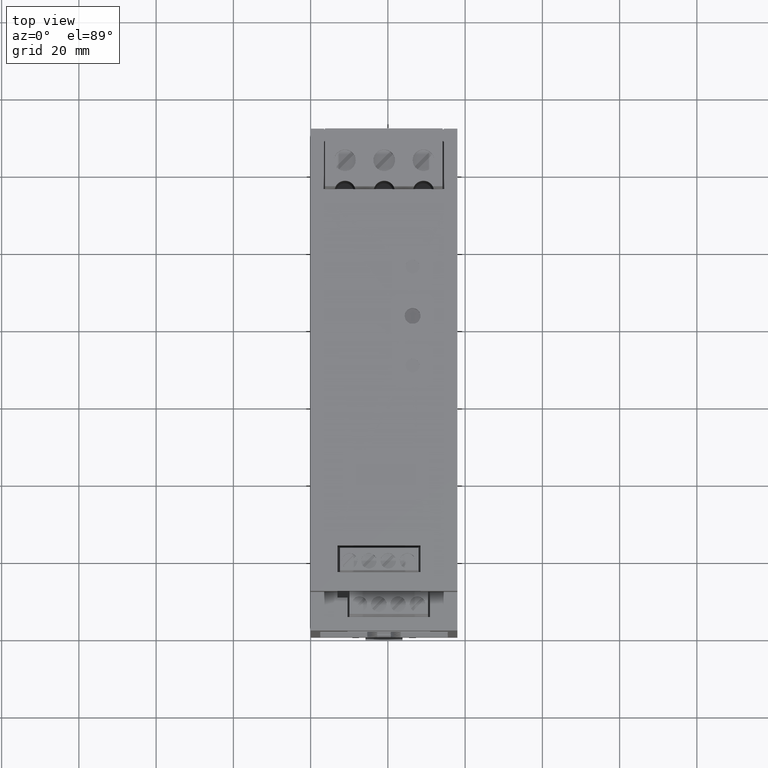
[diagram: clean part render]
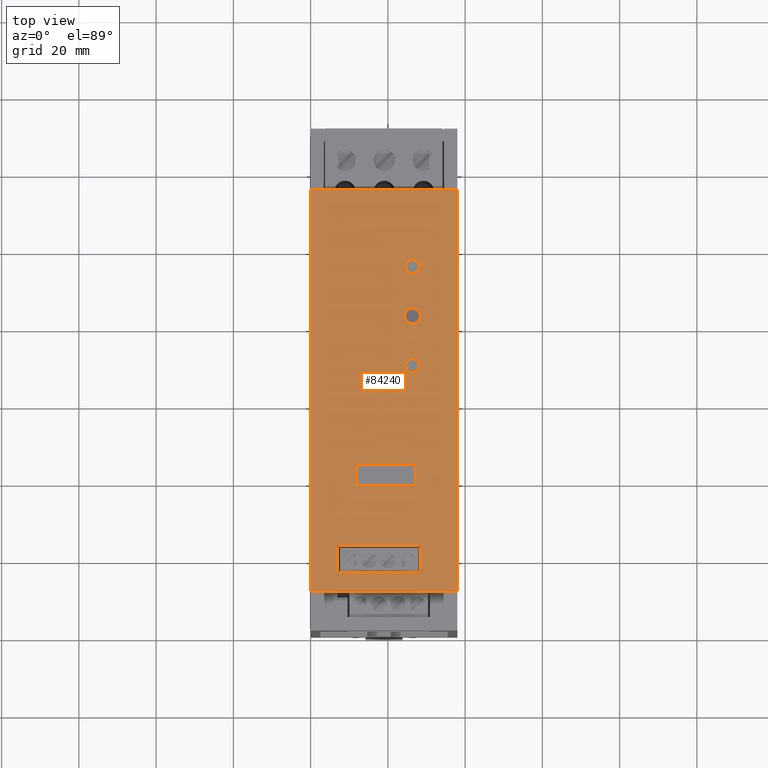
[diagram: same view with one face highlighted and labeled with its STEP entity id]
A machine part, top view. The second image highlights one B-rep face of the part: STEP entity #84240.
In plain terms, the highlighted planar face has unit normal (-0, 0, 1).
Its self-contained STEP definition (entity closure, byte-faithful):
#82720=CARTESIAN_POINT('',(33.9999632882468,122.000000000009,
119.104326773573));
#82730=DIRECTION('',(4.76938635649023E-23,1.,3.46944695162579E-18));
#82740=DIRECTION('',(-1.37468202355512E-5,3.46944695195361E-18,
-0.999999999905512));
#82750=AXIS2_PLACEMENT_3D('',#82720,#82730,#82740);
#82760=PLANE('',#82750);
#82770=CARTESIAN_POINT('',(0.,122.000000000009,86.4547941618713));
#82780=DIRECTION('',(-0.999999999905512,0.,1.37468202355512E-5));
#82790=VECTOR('',#82780,1.);
#82800=LINE('',#82770,#82790);
#82810=CARTESIAN_POINT('',(26.0995144553126,122.000000000009,
86.4544353765379));
#82820=VERTEX_POINT('',#82810);
#82830=CARTESIAN_POINT('',(10.8995144567488,122.000000000009,
86.4546443282054));
#82840=VERTEX_POINT('',#82830);
#82850=EDGE_CURVE('',#82820,#82840,#82800,.T.);
#82860=ORIENTED_EDGE('',*,*,#82850,.F.);
#82870=CARTESIAN_POINT('',(10.8983259802946,122.000000000009,0.));
#82880=DIRECTION('',(1.37468202355246E-5,-3.46944695195361E-18,
0.999999999905512));
#82890=VECTOR('',#82880,1.);
#82900=LINE('',#82870,#82890);
#82910=CARTESIAN_POINT('',(10.899587314896,122.000000000009,
91.7546443277047));
#82920=VERTEX_POINT('',#82910);
#82930=EDGE_CURVE('',#82840,#82920,#82900,.T.);
#82940=ORIENTED_EDGE('',*,*,#82930,.F.);
#82950=CARTESIAN_POINT('',(0.,122.000000000009,91.7547941623721));
#82960=DIRECTION('',(0.999999999905512,0.,-1.37468202355512E-5));
#82970=VECTOR('',#82960,1.);
#82980=LINE('',#82950,#82970);
#82990=CARTESIAN_POINT('',(26.0995873134598,122.000000000009,
91.7544353760372));
#83000=VERTEX_POINT('',#82990);
#83010=EDGE_CURVE('',#82920,#83000,#82980,.T.);
#83020=ORIENTED_EDGE('',*,*,#83010,.F.);
#83030=CARTESIAN_POINT('',(26.0983259817308,122.000000000009,0.));
#83040=DIRECTION('',(-1.37468202355246E-5,3.46944695195361E-18,
-0.999999999905512));
#83050=VECTOR('',#83040,1.);
#83060=LINE('',#83030,#83050);
#83070=EDGE_CURVE('',#83000,#82820,#83060,.T.);
#83080=ORIENTED_EDGE('',*,*,#83070,.F.);
#83090=EDGE_LOOP('',(#83080,#83020,#82940,#82860));
#83100=FACE_BOUND('',#83090,.T.);
#83110=CARTESIAN_POINT('',(25.3880231618617,122.000000000009,
47.9363312967292));
#83120=DIRECTION('',(-2.50184635150066E-20,-1.,5.20417042740591E-17));
#83130=DIRECTION('',(0.999999999905512,-2.57338714660528E-20,
-1.37468202356078E-5));
#83140=AXIS2_PLACEMENT_3D('',#83110,#83120,#83130);
#83150=CIRCLE('',#83140,2.05);
#83160=CARTESIAN_POINT('',(27.438023161668,122.000000000009,
47.9363031157477));
#83170=VERTEX_POINT('',#83160);
#83180=CARTESIAN_POINT('',(23.3380231620554,122.000000000009,
47.9363594777107));
#83190=VERTEX_POINT('',#83180);
#83200=EDGE_CURVE('',#83170,#83190,#83150,.T.);
#83210=ORIENTED_EDGE('',*,*,#83200,.T.);
#83220=EDGE_CURVE('',#83190,#83170,#83150,.T.);
#83230=ORIENTED_EDGE('',*,*,#83220,.T.);
#83240=EDGE_LOOP('',(#83230,#83210));
#83250=FACE_BOUND('',#83240,.T.);
#83260=CARTESIAN_POINT('',(25.3878470650944,122.000000000009,
35.1263312979396));
#83270=DIRECTION('',(-2.50184635150066E-20,-1.,5.20417042740591E-17));
#83280=DIRECTION('',(0.999999999905512,-2.57338714660528E-20,
-1.37468202356078E-5));
#83290=AXIS2_PLACEMENT_3D('',#83260,#83270,#83280);
#83300=CIRCLE('',#83290,1.8);
#83310=CARTESIAN_POINT('',(23.5878470652645,122.000000000009,
35.126356042216));
#83320=VERTEX_POINT('',#83310);
#83330=CARTESIAN_POINT('',(27.1878470649244,122.000000000009,
35.1263065536632));
#83340=VERTEX_POINT('',#83330);
#83350=EDGE_CURVE('',#83320,#83340,#83300,.T.);
#83360=ORIENTED_EDGE('',*,*,#83350,.T.);
#83370=EDGE_CURVE('',#83340,#83320,#83300,.T.);
#83380=ORIENTED_EDGE('',*,*,#83370,.T.);
#83390=EDGE_LOOP('',(#83380,#83360));
#83400=FACE_BOUND('',#83390,.T.);
#83410=CARTESIAN_POINT('',(25.3881992586289,122.000000000009,
60.7463312955188));
#83420=DIRECTION('',(-2.50184635150066E-20,-1.,5.20417042740591E-17));
#83430=DIRECTION('',(0.999999999905512,-2.57338714660528E-20,
-1.37468202356078E-5));
#83440=AXIS2_PLACEMENT_3D('',#83410,#83420,#83430);
#83450=CIRCLE('',#83440,1.8);
#83460=CARTESIAN_POINT('',(23.588199258799,122.000000000009,
60.7463560397952));
#83470=VERTEX_POINT('',#83460);
#83480=CARTESIAN_POINT('',(27.1881992584588,122.000000000009,
60.7463065512424));
#83490=VERTEX_POINT('',#83480);
#83500=EDGE_CURVE('',#83470,#83490,#83450,.T.);
#83510=ORIENTED_EDGE('',*,*,#83500,.T.);
#83520=EDGE_CURVE('',#83490,#83470,#83450,.T.);
#83530=ORIENTED_EDGE('',*,*,#83520,.T.);
#83540=EDGE_LOOP('',(#83530,#83510));
#83550=FACE_BOUND('',#83540,.T.);
#83560=CARTESIAN_POINT('',(0.,122.000000000009,107.304794163841));
#83570=DIRECTION('',(-0.999999999905512,0.,1.37468202355512E-5));
#83580=VECTOR('',#83570,1.);
#83590=LINE('',#83560,#83580);
#83600=CARTESIAN_POINT('',(27.3998010763917,122.000000000009,
107.304417503702));
#83610=VERTEX_POINT('',#83600);
#83620=CARTESIAN_POINT('',(5.9998010784137,122.000000000009,
107.304711685655));
#83630=VERTEX_POINT('',#83620);
#83640=EDGE_CURVE('',#83610,#83630,#83590,.T.);
#83650=ORIENTED_EDGE('',*,*,#83640,.F.);
#83660=CARTESIAN_POINT('',(5.99832597983159,122.000000000009,0.));
#83670=DIRECTION('',(-1.37468202355512E-5,3.46944695195361E-18,
-0.999999999905512));
#83680=VECTOR('',#83670,1.);
#83690=LINE('',#83660,#83680);
#83700=CARTESIAN_POINT('',(5.99989730615535,122.000000000009,
114.304711684993));
#83710=VERTEX_POINT('',#83700);
#83720=EDGE_CURVE('',#83710,#83630,#83690,.T.);
#83730=ORIENTED_EDGE('',*,*,#83720,.T.);
#83740=CARTESIAN_POINT('',(0.,122.000000000009,114.304794164503));
#83750=DIRECTION('',(0.999999999905512,0.,-1.37468202355512E-5));
#83760=VECTOR('',#83750,1.);
#83770=LINE('',#83740,#83760);
#83780=CARTESIAN_POINT('',(27.3998973041333,122.000000000009,
114.30441750304));
#83790=VERTEX_POINT('',#83780);
#83800=EDGE_CURVE('',#83710,#83790,#83770,.T.);
#83810=ORIENTED_EDGE('',*,*,#83800,.F.);
#83820=CARTESIAN_POINT('',(27.3983259818536,122.000000000009,0.));
#83830=DIRECTION('',(1.37468202355512E-5,-3.46944695195361E-18,
0.999999999905512));
#83840=VECTOR('',#83830,1.);
#83850=LINE('',#83820,#83840);
#83860=EDGE_CURVE('',#83610,#83790,#83850,.T.);
#83870=ORIENTED_EDGE('',*,*,#83860,.T.);
#83880=EDGE_LOOP('',(#83870,#83810,#83730,#83650));
#83890=FACE_BOUND('',#83880,.T.);
#83900=CARTESIAN_POINT('',(36.9983259827607,122.000000000009,0.));
#83910=DIRECTION('',(1.37468202355512E-5,-3.46944695195361E-18,
0.999999999905512));
#83920=VECTOR('',#83910,1.);
#83930=LINE('',#83900,#83920);
#83940=CARTESIAN_POINT('',(36.9985336186589,122.000000000009,
15.104285542939));
#83950=VERTEX_POINT('',#83940);
#83960=CARTESIAN_POINT('',(36.9999632879634,122.000000000009,
119.104285533112));
#83970=VERTEX_POINT('',#83960);
#83980=EDGE_CURVE('',#83950,#83970,#83930,.T.);
#83990=ORIENTED_EDGE('',*,*,#83980,.F.);
#84000=CARTESIAN_POINT('',(0.,122.000000000009,119.104794164956));
#84010=DIRECTION('',(0.999999999905512,0.,-1.37468202355512E-5));
#84020=VECTOR('',#84010,1.);
#84030=LINE('',#84000,#84020);
#84040=CARTESIAN_POINT('',(-1.0000367084461,122.000000000009,
119.104807912281));
#84050=VERTEX_POINT('',#84040);
#84060=EDGE_CURVE('',#84050,#83970,#84030,.T.);
#84070=ORIENTED_EDGE('',*,*,#84060,.T.);
#84080=CARTESIAN_POINT('',(-1.00167402082982,122.000000000009,0.));
#84090=DIRECTION('',(-1.37468202355512E-5,3.46944695195361E-18,
-0.999999999905512));
#84100=VECTOR('',#84090,1.);
#84110=LINE('',#84080,#84100);
#84120=CARTESIAN_POINT('',(-1.0014663777506,122.000000000009,
15.1048079221079));
#84130=VERTEX_POINT('',#84120);
#84140=EDGE_CURVE('',#84050,#84130,#84110,.T.);
#84150=ORIENTED_EDGE('',*,*,#84140,.F.);
#84160=CARTESIAN_POINT('',(0.,122.000000000009,15.1047941551297));
#84170=DIRECTION('',(-0.999999999905512,0.,1.37468202355512E-5));
#84180=VECTOR('',#84170,1.);
#84190=LINE('',#84160,#84180);
#84200=EDGE_CURVE('',#83950,#84130,#84190,.T.);
#84210=ORIENTED_EDGE('',*,*,#84200,.T.);
#84220=EDGE_LOOP('',(#84210,#84150,#84070,#83990));
#84230=FACE_OUTER_BOUND('',#84220,.T.);
#84240=ADVANCED_FACE('',(#83100,#83250,#83400,#83550,#83890,#84230),
#82760,.T.);